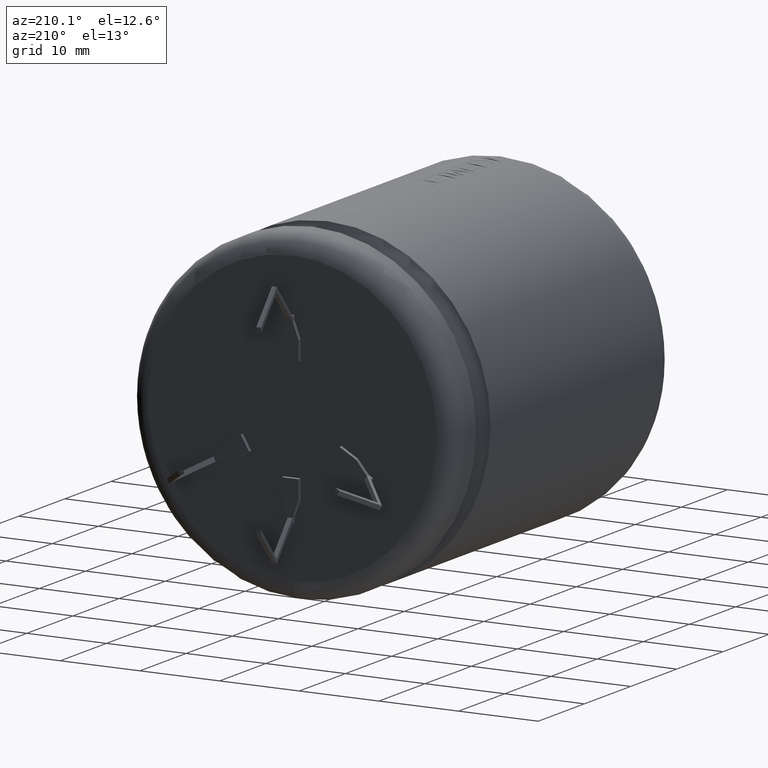
[diagram: clean part render]
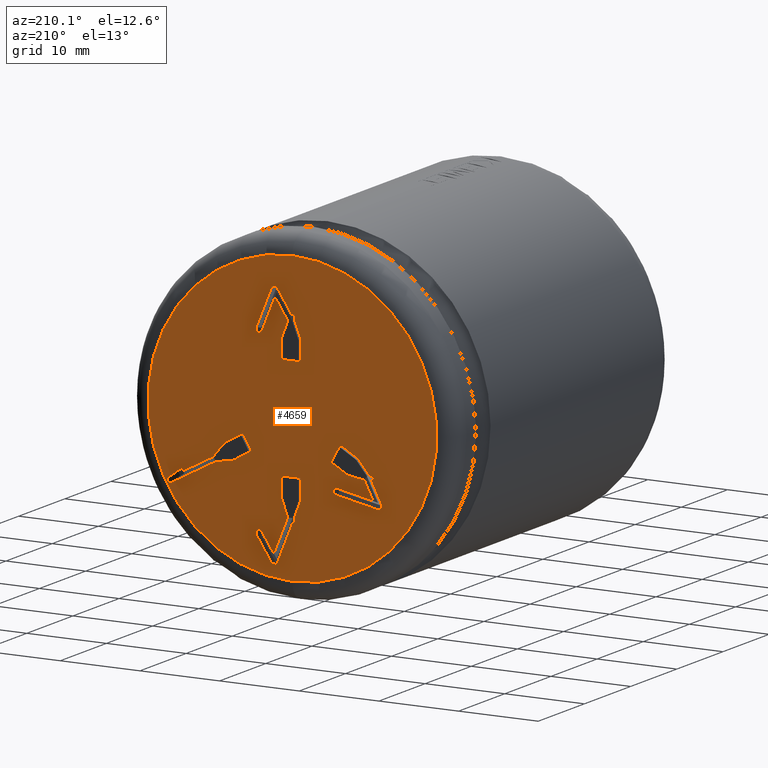
[diagram: same view with one face highlighted and labeled with its STEP entity id]
A machine part, auxiliary view. The second image highlights one B-rep face of the part: STEP entity #4659.
In plain terms, the highlighted planar face has unit normal (0, 1, 0).
Its self-contained STEP definition (entity closure, byte-faithful):
#13 = DIRECTION ( 'NONE',  ( 0.6353231332851891900, 0.0000000000000000000, 0.7722464090642893200 ) ) ;
#26 = VERTEX_POINT ( 'NONE', #1446 ) ;
#58 = EDGE_LOOP ( 'NONE', ( #3773, #2949, #3581, #4605, #4057, #4273, #2678, #775 ) ) ;
#66 = LINE ( 'NONE', #3994, #4131 ) ;
#69 = CARTESIAN_POINT ( 'NONE',  ( 0.2999999999999999900, 46.98999999999999500, -11.54999999999999900 ) ) ;
#92 = CARTESIAN_POINT ( 'NONE',  ( 0.3000000000000000400, 46.98999999999999500, -10.94999999999999900 ) ) ;
#98 = DIRECTION ( 'NONE',  ( -9.035018104045873200E-017, -0.0000000000000000000, -1.000000000000000000 ) ) ;
#101 = EDGE_CURVE ( 'NONE', #2289, #207, #3420, .T. ) ;
#104 = CARTESIAN_POINT ( 'NONE',  ( 1.050000000000000000, 46.98999999999999500, 8.949999999999999300 ) ) ;
#169 = VECTOR ( 'NONE', #3131, 1000.000000000000000 ) ;
#176 = VECTOR ( 'NONE', #1043, 1000.000000000000000 ) ;
#183 = EDGE_CURVE ( 'NONE', #1985, #1364, #1507, .T. ) ;
#184 = VECTOR ( 'NONE', #1340, 1000.000000000000000 ) ;
#207 = VERTEX_POINT ( 'NONE', #4047 ) ;
#213 = CARTESIAN_POINT ( 'NONE',  ( 7.225927363870662900, 46.98999999999999500, -5.384326673973745000 ) ) ;
#233 = FACE_BOUND ( 'NONE', #2470, .T. ) ;
#245 = VECTOR ( 'NONE', #4256, 1000.000000000000000 ) ;
#246 = CARTESIAN_POINT ( 'NONE',  ( 7.236696879329363300, 46.98999999999999500, -2.965673326026422500 ) ) ;
#267 = CARTESIAN_POINT ( 'NONE',  ( -6.186696879329407900, 46.98999999999999500, -4.784326673973645900 ) ) ;
#268 = CARTESIAN_POINT ( 'NONE',  ( 1.050000000000000000, 46.98999999999999500, 8.949999999999999300 ) ) ;
#282 = EDGE_CURVE ( 'NONE', #4006, #1033, #524, .T. ) ;
#301 = ORIENTED_EDGE ( 'NONE', *, *, #520, .F. ) ;
#305 = CARTESIAN_POINT ( 'NONE',  ( -9.332978171439616900, 46.98999999999999500, -5.734807621135310300 ) ) ;
#310 = ORIENTED_EDGE ( 'NONE', *, *, #3556, .F. ) ;
#347 = CARTESIAN_POINT ( 'NONE',  ( 9.632978171439541300, 46.98999999999999500, -5.215192378864781400 ) ) ;
#351 = LINE ( 'NONE', #246, #169 ) ;
#366 = CARTESIAN_POINT ( 'NONE',  ( 0.0000000000000000000, 46.98999999999999500, 0.0000000000000000000 ) ) ;
#374 = CARTESIAN_POINT ( 'NONE',  ( 7.225927363870662900, 46.98999999999999500, -5.384326673973745000 ) ) ;
#410 = LINE ( 'NONE', #4687, #1322 ) ;
#446 = LINE ( 'NONE', #1894, #4298 ) ;
#501 = VERTEX_POINT ( 'NONE', #2825 ) ;
#516 = CARTESIAN_POINT ( 'NONE',  ( 10.15259341371020200, 46.98999999999999500, -5.515192378864787400 ) ) ;
#520 = EDGE_CURVE ( 'NONE', #3597, #1551, #2863, .T. ) ;
#524 = LINE ( 'NONE', #305, #1026 ) ;
#555 = ORIENTED_EDGE ( 'NONE', *, *, #2006, .F. ) ;
#579 = LINE ( 'NONE', #268, #184 ) ;
#591 = VERTEX_POINT ( 'NONE', #762 ) ;
#615 = CARTESIAN_POINT ( 'NONE',  ( -5.147466394788081900, 46.98999999999999500, -4.184326673973648900 ) ) ;
#616 = DIRECTION ( 'NONE',  ( -0.8660254037844328200, 0.0000000000000000000, 0.5000000000000099900 ) ) ;
#633 = VECTOR ( 'NONE', #4496, 1000.000000000000100 ) ;
#643 = VECTOR ( 'NONE', #3226, 1000.000000000000100 ) ;
#650 = ORIENTED_EDGE ( 'NONE', *, *, #3148, .F. ) ;
#661 = VERTEX_POINT ( 'NONE', #69 ) ;
#683 = DIRECTION ( 'NONE',  ( 9.035018104045873200E-017, -0.0000000000000000000, 1.000000000000000000 ) ) ;
#713 = VERTEX_POINT ( 'NONE', #2614 ) ;
#742 = DIRECTION ( 'NONE',  ( -0.9864465748735770100, 0.0000000000000000000, 0.1640827685047650800 ) ) ;
#762 = CARTESIAN_POINT ( 'NONE',  ( -1.050000000000000000, 46.98999999999999500, -6.549999999999999800 ) ) ;
#775 = ORIENTED_EDGE ( 'NONE', *, *, #1512, .F. ) ;
#815 = EDGE_CURVE ( 'NONE', #2754, #591, #2624, .T. ) ;
#828 = EDGE_CURVE ( 'NONE', #1364, #1985, #2062, .T. ) ;
#833 = EDGE_CURVE ( 'NONE', #2744, #4006, #1137, .T. ) ;
#851 = VERTEX_POINT ( 'NONE', #930 ) ;
#855 = ORIENTED_EDGE ( 'NONE', *, *, #833, .F. ) ;
#863 = VERTEX_POINT ( 'NONE', #1339 ) ;
#884 = VECTOR ( 'NONE', #990, 1000.000000000000100 ) ;
#918 = VERTEX_POINT ( 'NONE', #1419 ) ;
#921 = AXIS2_PLACEMENT_3D ( 'NONE', #366, #4328, #4658 ) ;
#930 = CARTESIAN_POINT ( 'NONE',  ( 5.147466394788024100, 46.98999999999999500, -4.184326673973720800 ) ) ;
#940 = LINE ( 'NONE', #3483, #3192 ) ;
#973 = DIRECTION ( 'NONE',  ( -0.9864465748735792300, -0.0000000000000000000, -0.1640827685047515400 ) ) ;
#977 = CARTESIAN_POINT ( 'NONE',  ( 10.15259341371020200, 46.98999999999999500, -5.515192378864787400 ) ) ;
#990 = DIRECTION ( 'NONE',  ( 0.6353231332851785300, -0.0000000000000000000, -0.7722464090642980900 ) ) ;
#991 = ORIENTED_EDGE ( 'NONE', *, *, #2703, .F. ) ;
#1017 = EDGE_CURVE ( 'NONE', #2558, #713, #1253, .T. ) ;
#1026 = VECTOR ( 'NONE', #973, 1000.000000000000200 ) ;
#1033 = VERTEX_POINT ( 'NONE', #3982 ) ;
#1043 = DIRECTION ( 'NONE',  ( 0.0000000000000000000, 0.0000000000000000000, -1.000000000000000000 ) ) ;
#1069 = VECTOR ( 'NONE', #3067, 1000.000000000000000 ) ;
#1116 = VECTOR ( 'NONE', #616, 1000.000000000000200 ) ;
#1133 = CARTESIAN_POINT ( 'NONE',  ( 1.050000000000000300, 46.98999999999999500, -6.549999999999999800 ) ) ;
#1137 = LINE ( 'NONE', #267, #3869 ) ;
#1171 = CARTESIAN_POINT ( 'NONE',  ( -0.2999999999999999900, 46.98999999999999500, -11.54999999999999900 ) ) ;
#1174 = LINE ( 'NONE', #1215, #3237 ) ;
#1190 = LINE ( 'NONE', #1692, #2210 ) ;
#1215 = CARTESIAN_POINT ( 'NONE',  ( 9.852593413710195600, 46.98999999999999500, -6.034807621135446900 ) ) ;
#1253 = LINE ( 'NONE', #1840, #3019 ) ;
#1292 = VECTOR ( 'NONE', #3709, 1000.000000000000000 ) ;
#1298 = CARTESIAN_POINT ( 'NONE',  ( -7.225927363870734900, 46.98999999999999500, -5.384326673973642800 ) ) ;
#1304 = EDGE_CURVE ( 'NONE', #2451, #2558, #940, .T. ) ;
#1322 = VECTOR ( 'NONE', #683, 1000.000000000000000 ) ;
#1339 = CARTESIAN_POINT ( 'NONE',  ( -10.15259341371027800, 46.98999999999999500, -5.515192378864644400 ) ) ;
#1340 = DIRECTION ( 'NONE',  ( 0.0000000000000000000, 0.0000000000000000000, -1.000000000000000000 ) ) ;
#1342 = DIRECTION ( 'NONE',  ( -0.8660254037844398200, -0.0000000000000000000, -0.4999999999999979500 ) ) ;
#1358 = CARTESIAN_POINT ( 'NONE',  ( -1.050000000000000500, 46.98999999999999500, 8.949999999999995700 ) ) ;
#1359 = CARTESIAN_POINT ( 'NONE',  ( 0.0000000000000000000, 46.98999999999999500, 0.0000000000000000000 ) ) ;
#1364 = VERTEX_POINT ( 'NONE', #2751 ) ;
#1409 = VERTEX_POINT ( 'NONE', #4664 ) ;
#1419 = CARTESIAN_POINT ( 'NONE',  ( 9.852593413710195600, 46.98999999999999500, -6.034807621135446000 ) ) ;
#1446 = CARTESIAN_POINT ( 'NONE',  ( 6.197466394788045300, 46.98999999999999500, -2.365673326026411300 ) ) ;
#1467 = VERTEX_POINT ( 'NONE', #2226 ) ;
#1471 = ORIENTED_EDGE ( 'NONE', *, *, #4440, .F. ) ;
#1474 = EDGE_CURVE ( 'NONE', #2195, #918, #1174, .T. ) ;
#1477 = ORIENTED_EDGE ( 'NONE', *, *, #828, .T. ) ;
#1484 = DIRECTION ( 'NONE',  ( 0.0000000000000000000, 0.0000000000000000000, 1.000000000000000000 ) ) ;
#1500 = EDGE_CURVE ( 'NONE', #918, #3597, #2362, .T. ) ;
#1507 = CIRCLE ( 'NONE', #3212, 18.13839999999999700 ) ;
#1512 = EDGE_CURVE ( 'NONE', #3428, #1619, #3015, .T. ) ;
#1514 = ORIENTED_EDGE ( 'NONE', *, *, #282, .F. ) ;
#1531 = VERTEX_POINT ( 'NONE', #2046 ) ;
#1533 = EDGE_CURVE ( 'NONE', #501, #2754, #2892, .T. ) ;
#1545 = VECTOR ( 'NONE', #1668, 1000.000000000000000 ) ;
#1551 = VERTEX_POINT ( 'NONE', #374 ) ;
#1566 = VECTOR ( 'NONE', #2736, 1000.000000000000000 ) ;
#1569 = CARTESIAN_POINT ( 'NONE',  ( -0.2999999999999999900, 46.98999999999999500, 11.54999999999999900 ) ) ;
#1583 = CARTESIAN_POINT ( 'NONE',  ( -6.197466394788077300, 46.98999999999999500, -2.365673326026324700 ) ) ;
#1619 = VERTEX_POINT ( 'NONE', #3962 ) ;
#1621 = LINE ( 'NONE', #3462, #1566 ) ;
#1668 = DIRECTION ( 'NONE',  ( -1.000000000000000000, 0.0000000000000000000, -8.260587980841935800E-016 ) ) ;
#1682 = EDGE_CURVE ( 'NONE', #2022, #1467, #446, .T. ) ;
#1692 = CARTESIAN_POINT ( 'NONE',  ( 1.050000000000000300, 46.98999999999999500, -6.549999999999999800 ) ) ;
#1702 = CARTESIAN_POINT ( 'NONE',  ( -10.15259341371028000, 46.98999999999999500, -5.515192378864644400 ) ) ;
#1729 = EDGE_LOOP ( 'NONE', ( #3156, #2971, #310, #3223, #3434, #650, #3535, #4203 ) ) ;
#1731 = VERTEX_POINT ( 'NONE', #2223 ) ;
#1733 = VECTOR ( 'NONE', #742, 1000.000000000000100 ) ;
#1747 = EDGE_CURVE ( 'NONE', #661, #4046, #2830, .T. ) ;
#1750 = CARTESIAN_POINT ( 'NONE',  ( -1.050000000000000000, 46.98999999999999500, -8.949999999999999300 ) ) ;
#1771 = DIRECTION ( 'NONE',  ( 0.0000000000000000000, 0.0000000000000000000, 1.000000000000000000 ) ) ;
#1775 = CARTESIAN_POINT ( 'NONE',  ( 6.197466394788045300, 46.98999999999999500, -2.365673326026411300 ) ) ;
#1840 = CARTESIAN_POINT ( 'NONE',  ( 0.2999999999999999900, 46.98999999999999500, 11.54999999999999900 ) ) ;
#1886 = VECTOR ( 'NONE', #3397, 1000.000000000000100 ) ;
#1894 = CARTESIAN_POINT ( 'NONE',  ( -0.3000000000000000400, 46.98999999999999500, 10.94999999999999900 ) ) ;
#1916 = EDGE_CURVE ( 'NONE', #1033, #1409, #3895, .T. ) ;
#1936 = LINE ( 'NONE', #4305, #884 ) ;
#1985 = VERTEX_POINT ( 'NONE', #4166 ) ;
#2006 = EDGE_CURVE ( 'NONE', #1551, #851, #4284, .T. ) ;
#2022 = VERTEX_POINT ( 'NONE', #1358 ) ;
#2029 = CARTESIAN_POINT ( 'NONE',  ( 9.332978171439537000, 46.98999999999999500, -5.734807621135440800 ) ) ;
#2046 = CARTESIAN_POINT ( 'NONE',  ( 8.275927363870680500, 46.98999999999999500, -3.565673326026433300 ) ) ;
#2050 = LINE ( 'NONE', #3778, #1069 ) ;
#2062 = CIRCLE ( 'NONE', #3826, 18.13839999999999700 ) ;
#2093 = DIRECTION ( 'NONE',  ( 0.0000000000000000000, 1.000000000000000000, 0.0000000000000000000 ) ) ;
#2095 = VERTEX_POINT ( 'NONE', #2796 ) ;
#2102 = DIRECTION ( 'NONE',  ( 0.5000000000000093300, 0.0000000000000000000, 0.8660254037844331600 ) ) ;
#2162 = FACE_BOUND ( 'NONE', #4398, .T. ) ;
#2195 = VERTEX_POINT ( 'NONE', #977 ) ;
#2199 = CARTESIAN_POINT ( 'NONE',  ( 0.0000000000000000000, 46.98999999999999500, 0.0000000000000000000 ) ) ;
#2210 = VECTOR ( 'NONE', #3182, 1000.000000000000000 ) ;
#2216 = LINE ( 'NONE', #1775, #4592 ) ;
#2223 = CARTESIAN_POINT ( 'NONE',  ( 0.3000000000000000400, 46.98999999999999500, -10.94999999999999900 ) ) ;
#2226 = CARTESIAN_POINT ( 'NONE',  ( -0.3000000000000000400, 46.98999999999999500, 10.94999999999999900 ) ) ;
#2235 = VERTEX_POINT ( 'NONE', #347 ) ;
#2268 = ORIENTED_EDGE ( 'NONE', *, *, #3335, .F. ) ;
#2289 = VERTEX_POINT ( 'NONE', #1133 ) ;
#2362 = LINE ( 'NONE', #3843, #1116 ) ;
#2377 = CARTESIAN_POINT ( 'NONE',  ( -0.2999999999999999900, 46.98999999999999500, -11.54999999999999900 ) ) ;
#2424 = DIRECTION ( 'NONE',  ( 0.3511234415883916500, 0.0000000000000000000, -0.9363291775690445500 ) ) ;
#2451 = VERTEX_POINT ( 'NONE', #1569 ) ;
#2452 = EDGE_CURVE ( 'NONE', #1731, #661, #3099, .T. ) ;
#2454 = VECTOR ( 'NONE', #2424, 1000.000000000000000 ) ;
#2470 = EDGE_LOOP ( 'NONE', ( #555, #301, #3832, #4521, #1471, #3946, #4662, #3815 ) ) ;
#2495 = CARTESIAN_POINT ( 'NONE',  ( 1.050000000000000500, 46.98999999999999500, -7.749999999999998200 ) ) ;
#2558 = VERTEX_POINT ( 'NONE', #3443 ) ;
#2580 = EDGE_CURVE ( 'NONE', #3577, #2744, #1621, .T. ) ;
#2614 = CARTESIAN_POINT ( 'NONE',  ( 0.3000000000000000400, 46.98999999999999500, 10.94999999999999900 ) ) ;
#2624 = LINE ( 'NONE', #1750, #245 ) ;
#2678 = ORIENTED_EDGE ( 'NONE', *, *, #3737, .F. ) ;
#2683 = CARTESIAN_POINT ( 'NONE',  ( 0.2999999999999999900, 46.98999999999999500, -11.54999999999999900 ) ) ;
#2703 = EDGE_CURVE ( 'NONE', #863, #2095, #4144, .T. ) ;
#2706 = ORIENTED_EDGE ( 'NONE', *, *, #4456, .F. ) ;
#2715 = DIRECTION ( 'NONE',  ( -0.4999999999999979500, -0.0000000000000000000, 0.8660254037844397100 ) ) ;
#2736 = DIRECTION ( 'NONE',  ( 0.4999999999999987200, 0.0000000000000000000, -0.8660254037844393700 ) ) ;
#2743 = VECTOR ( 'NONE', #98, 1000.000000000000000 ) ;
#2744 = VERTEX_POINT ( 'NONE', #615 ) ;
#2751 = CARTESIAN_POINT ( 'NONE',  ( 0.0000000000000000000, 46.98999999999999500, 18.13839999999999700 ) ) ;
#2754 = VERTEX_POINT ( 'NONE', #2789 ) ;
#2757 = EDGE_CURVE ( 'NONE', #2953, #3428, #579, .T. ) ;
#2767 = DIRECTION ( 'NONE',  ( -0.8660254037844328200, 0.0000000000000000000, 0.5000000000000101000 ) ) ;
#2789 = CARTESIAN_POINT ( 'NONE',  ( -1.050000000000000000, 46.98999999999999500, -8.949999999999999300 ) ) ;
#2793 = EDGE_CURVE ( 'NONE', #713, #2953, #4392, .T. ) ;
#2796 = CARTESIAN_POINT ( 'NONE',  ( -9.632978171439614100, 46.98999999999999500, -5.215192378864645500 ) ) ;
#2811 = ORIENTED_EDGE ( 'NONE', *, *, #1916, .F. ) ;
#2825 = CARTESIAN_POINT ( 'NONE',  ( -0.3000000000000000400, 46.98999999999999500, -10.94999999999999900 ) ) ;
#2830 = LINE ( 'NONE', #1171, #1292 ) ;
#2863 = LINE ( 'NONE', #3940, #1733 ) ;
#2891 = PLANE ( 'NONE',  #921 ) ;
#2892 = LINE ( 'NONE', #3154, #4576 ) ;
#2922 = DIRECTION ( 'NONE',  ( -0.8660254037844397100, 0.0000000000000000000, -0.4999999999999979500 ) ) ;
#2949 = ORIENTED_EDGE ( 'NONE', *, *, #2793, .F. ) ;
#2952 = VECTOR ( 'NONE', #1342, 1000.000000000000000 ) ;
#2953 = VERTEX_POINT ( 'NONE', #104 ) ;
#2971 = ORIENTED_EDGE ( 'NONE', *, *, #1533, .F. ) ;
#2988 = ORIENTED_EDGE ( 'NONE', *, *, #183, .T. ) ;
#3015 = LINE ( 'NONE', #3102, #1545 ) ;
#3019 = VECTOR ( 'NONE', #4373, 1000.000000000000000 ) ;
#3067 = DIRECTION ( 'NONE',  ( -9.035018104045873200E-017, 0.0000000000000000000, 1.000000000000000000 ) ) ;
#3099 = LINE ( 'NONE', #2683, #2743 ) ;
#3102 = CARTESIAN_POINT ( 'NONE',  ( -1.050000000000000300, 46.98999999999999500, 6.549999999999999800 ) ) ;
#3131 = DIRECTION ( 'NONE',  ( 0.8660254037844328200, 0.0000000000000000000, -0.5000000000000101000 ) ) ;
#3148 = EDGE_CURVE ( 'NONE', #207, #1731, #3692, .T. ) ;
#3154 = CARTESIAN_POINT ( 'NONE',  ( -1.050000000000000000, 46.98999999999999500, -8.949999999999999300 ) ) ;
#3156 = ORIENTED_EDGE ( 'NONE', *, *, #815, .F. ) ;
#3182 = DIRECTION ( 'NONE',  ( 1.000000000000000000, -0.0000000000000000000, 8.260587980841935800E-016 ) ) ;
#3185 = DIRECTION ( 'NONE',  ( 1.000000000000000000, -0.0000000000000000000, 0.0000000000000000000 ) ) ;
#3192 = VECTOR ( 'NONE', #3185, 1000.000000000000000 ) ;
#3212 = AXIS2_PLACEMENT_3D ( 'NONE', #2199, #4064, #1484 ) ;
#3223 = ORIENTED_EDGE ( 'NONE', *, *, #1747, .F. ) ;
#3226 = DIRECTION ( 'NONE',  ( 0.8660254037844397100, 0.0000000000000000000, 0.4999999999999980000 ) ) ;
#3237 = VECTOR ( 'NONE', #4541, 1000.000000000000000 ) ;
#3254 = FACE_OUTER_BOUND ( 'NONE', #4063, .T. ) ;
#3304 = CARTESIAN_POINT ( 'NONE',  ( -8.275927363870733800, 46.98999999999999500, -3.565673326026319600 ) ) ;
#3335 = EDGE_CURVE ( 'NONE', #2095, #3884, #4379, .T. ) ;
#3397 = DIRECTION ( 'NONE',  ( 0.8660254037844397100, 0.0000000000000000000, 0.4999999999999979500 ) ) ;
#3407 = VECTOR ( 'NONE', #2715, 1000.000000000000100 ) ;
#3415 = FACE_BOUND ( 'NONE', #1729, .T. ) ;
#3420 = LINE ( 'NONE', #2495, #176 ) ;
#3428 = VERTEX_POINT ( 'NONE', #4332 ) ;
#3434 = ORIENTED_EDGE ( 'NONE', *, *, #2452, .F. ) ;
#3443 = CARTESIAN_POINT ( 'NONE',  ( 0.2999999999999999900, 46.98999999999999500, 11.54999999999999900 ) ) ;
#3462 = CARTESIAN_POINT ( 'NONE',  ( -5.147466394788081900, 46.98999999999999500, -4.184326673973648900 ) ) ;
#3470 = LINE ( 'NONE', #516, #3624 ) ;
#3483 = CARTESIAN_POINT ( 'NONE',  ( 0.2999999999999999900, 46.98999999999999500, 11.54999999999999900 ) ) ;
#3498 = EDGE_CURVE ( 'NONE', #1467, #2451, #410, .T. ) ;
#3535 = ORIENTED_EDGE ( 'NONE', *, *, #101, .F. ) ;
#3556 = EDGE_CURVE ( 'NONE', #4046, #501, #2050, .T. ) ;
#3577 = VERTEX_POINT ( 'NONE', #1583 ) ;
#3581 = ORIENTED_EDGE ( 'NONE', *, *, #1017, .F. ) ;
#3597 = VERTEX_POINT ( 'NONE', #2029 ) ;
#3624 = VECTOR ( 'NONE', #4532, 1000.000000000000100 ) ;
#3675 = EDGE_CURVE ( 'NONE', #26, #1531, #351, .T. ) ;
#3692 = LINE ( 'NONE', #92, #633 ) ;
#3709 = DIRECTION ( 'NONE',  ( -1.000000000000000000, -0.0000000000000000000, -0.0000000000000000000 ) ) ;
#3725 = EDGE_CURVE ( 'NONE', #851, #26, #2216, .T. ) ;
#3737 = EDGE_CURVE ( 'NONE', #1619, #2022, #66, .T. ) ;
#3738 = EDGE_CURVE ( 'NONE', #1531, #2235, #1936, .T. ) ;
#3773 = ORIENTED_EDGE ( 'NONE', *, *, #2757, .F. ) ;
#3778 = CARTESIAN_POINT ( 'NONE',  ( -0.2999999999999999900, 46.98999999999999500, -11.54999999999999900 ) ) ;
#3795 = CARTESIAN_POINT ( 'NONE',  ( -8.275927363870733800, 46.98999999999999500, -3.565673326026319600 ) ) ;
#3815 = ORIENTED_EDGE ( 'NONE', *, *, #3725, .F. ) ;
#3826 = AXIS2_PLACEMENT_3D ( 'NONE', #1359, #2093, #4630 ) ;
#3832 = ORIENTED_EDGE ( 'NONE', *, *, #1500, .F. ) ;
#3843 = CARTESIAN_POINT ( 'NONE',  ( 9.852593413710195600, 46.98999999999999500, -6.034807621135446900 ) ) ;
#3869 = VECTOR ( 'NONE', #2922, 1000.000000000000100 ) ;
#3884 = VERTEX_POINT ( 'NONE', #4648 ) ;
#3895 = LINE ( 'NONE', #4563, #2952 ) ;
#3905 = LINE ( 'NONE', #4187, #3407 ) ;
#3940 = CARTESIAN_POINT ( 'NONE',  ( 7.225927363870662900, 46.98999999999999500, -5.384326673973745000 ) ) ;
#3944 = ORIENTED_EDGE ( 'NONE', *, *, #4030, .F. ) ;
#3946 = ORIENTED_EDGE ( 'NONE', *, *, #3738, .F. ) ;
#3962 = CARTESIAN_POINT ( 'NONE',  ( -1.050000000000000300, 46.98999999999999500, 6.549999999999999800 ) ) ;
#3982 = CARTESIAN_POINT ( 'NONE',  ( -9.332978171439616900, 46.98999999999999500, -5.734807621135310300 ) ) ;
#3994 = CARTESIAN_POINT ( 'NONE',  ( -1.050000000000000500, 46.98999999999999500, 7.749999999999998200 ) ) ;
#4006 = VERTEX_POINT ( 'NONE', #1298 ) ;
#4030 = EDGE_CURVE ( 'NONE', #1409, #863, #3905, .T. ) ;
#4046 = VERTEX_POINT ( 'NONE', #2377 ) ;
#4047 = CARTESIAN_POINT ( 'NONE',  ( 1.050000000000000500, 46.98999999999999500, -8.949999999999995700 ) ) ;
#4057 = ORIENTED_EDGE ( 'NONE', *, *, #3498, .F. ) ;
#4063 = EDGE_LOOP ( 'NONE', ( #1477, #2988 ) ) ;
#4064 = DIRECTION ( 'NONE',  ( 0.0000000000000000000, 1.000000000000000000, 0.0000000000000000000 ) ) ;
#4110 = VECTOR ( 'NONE', #2767, 1000.000000000000000 ) ;
#4131 = VECTOR ( 'NONE', #1771, 1000.000000000000000 ) ;
#4144 = LINE ( 'NONE', #1702, #643 ) ;
#4155 = EDGE_CURVE ( 'NONE', #591, #2289, #1190, .T. ) ;
#4166 = CARTESIAN_POINT ( 'NONE',  ( 2.221313350165434800E-015, 46.98999999999999500, -18.13839999999999700 ) ) ;
#4187 = CARTESIAN_POINT ( 'NONE',  ( -10.15259341371028000, 46.98999999999999500, -5.515192378864644400 ) ) ;
#4193 = FACE_BOUND ( 'NONE', #58, .T. ) ;
#4199 = VECTOR ( 'NONE', #13, 1000.000000000000100 ) ;
#4203 = ORIENTED_EDGE ( 'NONE', *, *, #4155, .F. ) ;
#4256 = DIRECTION ( 'NONE',  ( 0.0000000000000000000, 0.0000000000000000000, 1.000000000000000000 ) ) ;
#4273 = ORIENTED_EDGE ( 'NONE', *, *, #1682, .F. ) ;
#4284 = LINE ( 'NONE', #213, #4110 ) ;
#4298 = VECTOR ( 'NONE', #4428, 1000.000000000000100 ) ;
#4305 = CARTESIAN_POINT ( 'NONE',  ( 9.632978171439541300, 46.98999999999999500, -5.215192378864781400 ) ) ;
#4328 = DIRECTION ( 'NONE',  ( 0.0000000000000000000, 1.000000000000000000, 0.0000000000000000000 ) ) ;
#4332 = CARTESIAN_POINT ( 'NONE',  ( 1.050000000000000000, 46.98999999999999500, 6.549999999999999800 ) ) ;
#4336 = ORIENTED_EDGE ( 'NONE', *, *, #2580, .F. ) ;
#4373 = DIRECTION ( 'NONE',  ( 9.035018104045873200E-017, 0.0000000000000000000, -1.000000000000000000 ) ) ;
#4379 = LINE ( 'NONE', #3304, #4199 ) ;
#4392 = LINE ( 'NONE', #4597, #2454 ) ;
#4398 = EDGE_LOOP ( 'NONE', ( #2706, #2268, #991, #3944, #2811, #1514, #855, #4336 ) ) ;
#4428 = DIRECTION ( 'NONE',  ( 0.3511234415883913700, -0.0000000000000000000, 0.9363291775690446600 ) ) ;
#4437 = LINE ( 'NONE', #3795, #1886 ) ;
#4440 = EDGE_CURVE ( 'NONE', #2235, #2195, #3470, .T. ) ;
#4456 = EDGE_CURVE ( 'NONE', #3884, #3577, #4437, .T. ) ;
#4496 = DIRECTION ( 'NONE',  ( -0.3511234415883913700, -0.0000000000000000000, -0.9363291775690446600 ) ) ;
#4521 = ORIENTED_EDGE ( 'NONE', *, *, #1474, .F. ) ;
#4532 = DIRECTION ( 'NONE',  ( 0.8660254037844327100, -0.0000000000000000000, -0.5000000000000102100 ) ) ;
#4541 = DIRECTION ( 'NONE',  ( -0.5000000000000101000, -0.0000000000000000000, -0.8660254037844328200 ) ) ;
#4563 = CARTESIAN_POINT ( 'NONE',  ( -9.852593413710280900, 46.98999999999999500, -6.034807621135308300 ) ) ;
#4576 = VECTOR ( 'NONE', #4656, 1000.000000000000000 ) ;
#4592 = VECTOR ( 'NONE', #2102, 1000.000000000000100 ) ;
#4597 = CARTESIAN_POINT ( 'NONE',  ( 1.050000000000000000, 46.98999999999999500, 8.949999999999999300 ) ) ;
#4605 = ORIENTED_EDGE ( 'NONE', *, *, #1304, .F. ) ;
#4630 = DIRECTION ( 'NONE',  ( 0.0000000000000000000, 0.0000000000000000000, 1.000000000000000000 ) ) ;
#4648 = CARTESIAN_POINT ( 'NONE',  ( -8.275927363870733800, 46.98999999999999500, -3.565673326026319600 ) ) ;
#4656 = DIRECTION ( 'NONE',  ( -0.3511234415883916500, -0.0000000000000000000, 0.9363291775690445500 ) ) ;
#4658 = DIRECTION ( 'NONE',  ( 0.0000000000000000000, -0.0000000000000000000, 1.000000000000000000 ) ) ;
#4659 = ADVANCED_FACE ( 'NONE', ( #4193, #3415, #3254, #2162, #233 ), #2891, .T. ) ;
#4662 = ORIENTED_EDGE ( 'NONE', *, *, #3675, .F. ) ;
#4664 = CARTESIAN_POINT ( 'NONE',  ( -9.852593413710280900, 46.98999999999999500, -6.034807621135308300 ) ) ;
#4687 = CARTESIAN_POINT ( 'NONE',  ( -0.2999999999999999900, 46.98999999999999500, 11.54999999999999900 ) ) ;